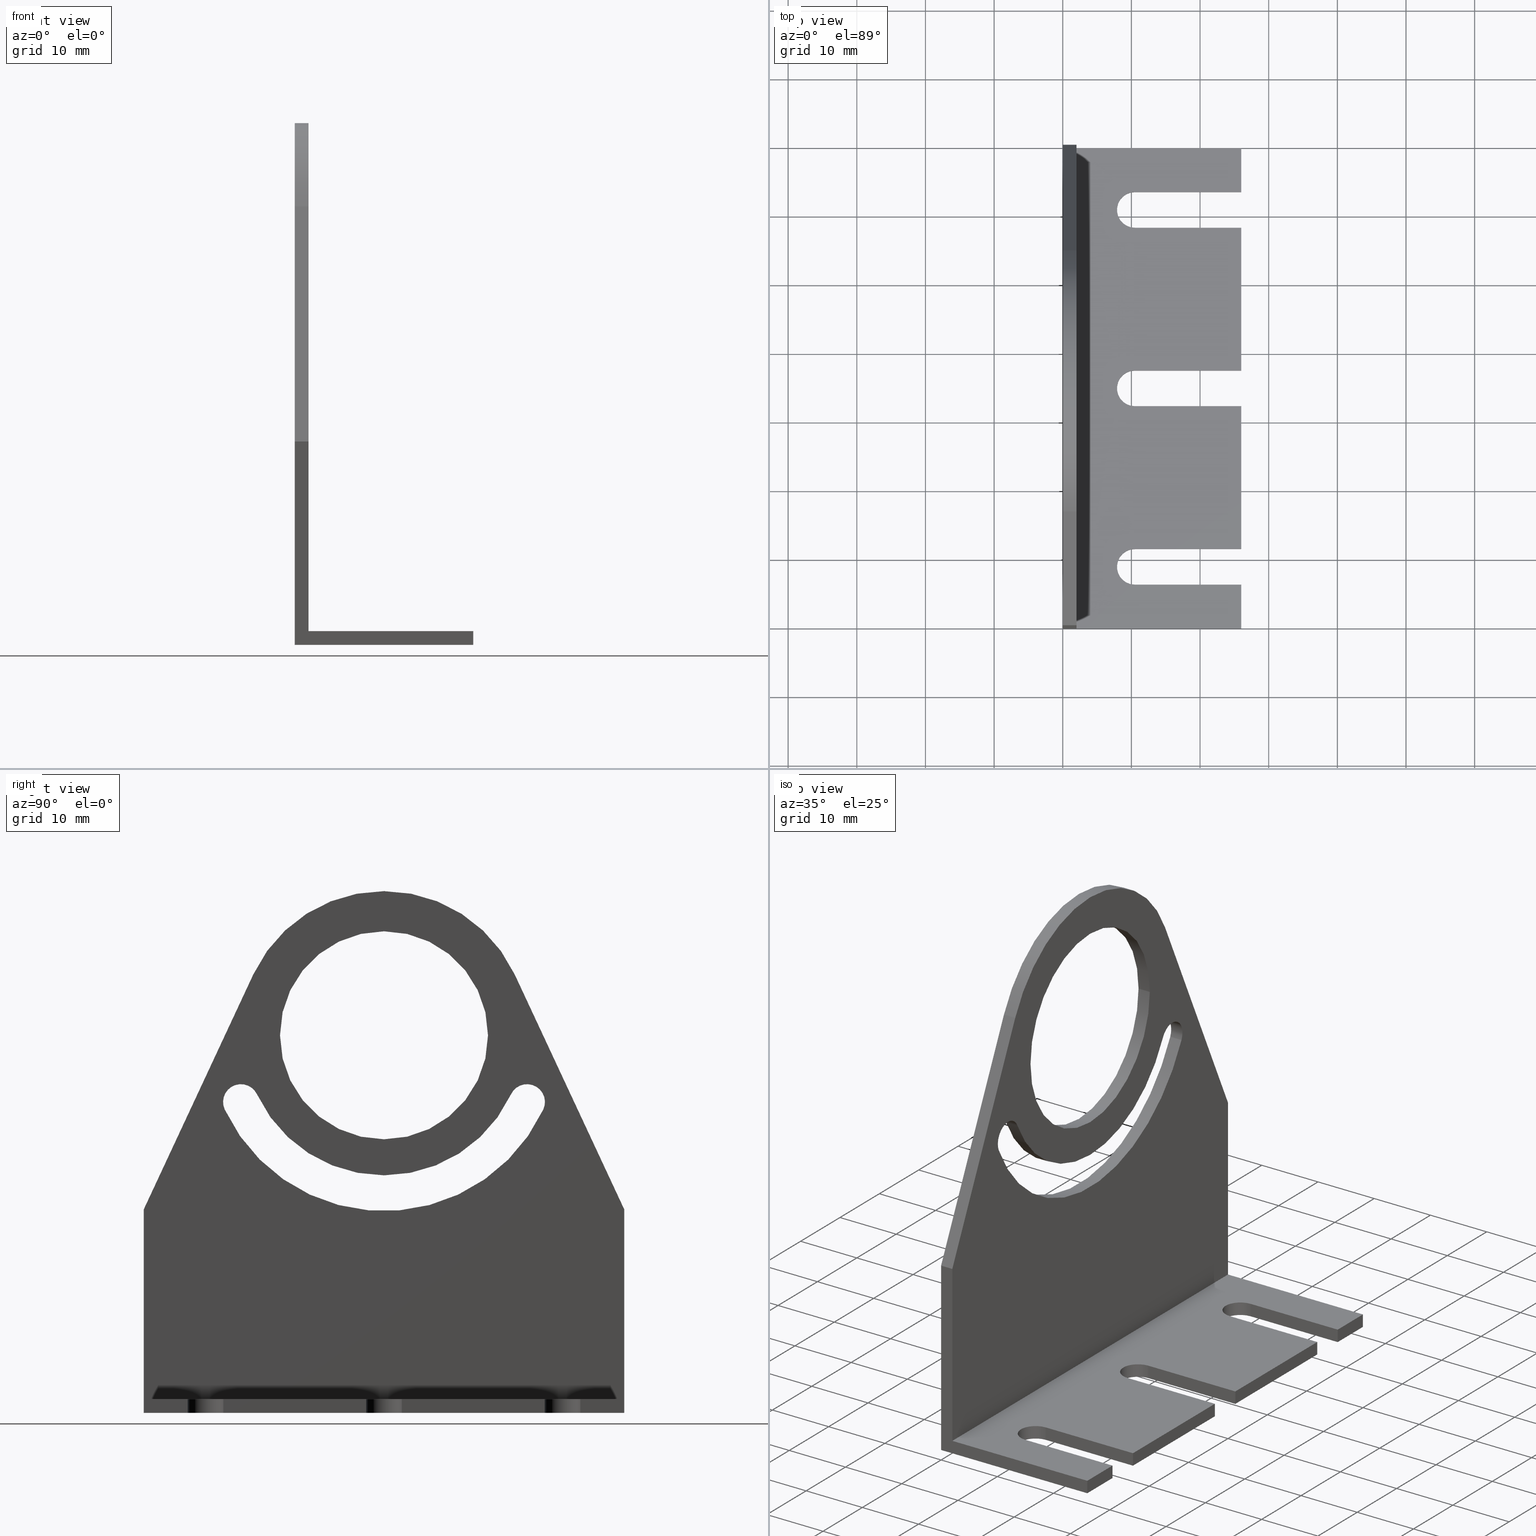
[diagram: canonical four-view strip — front | top / right | iso, engineering-drawing reading convention]
A machine part, canonical four-view strip (front | top / right | iso — engineering-drawing reading convention). The complete STEP part file that produces these views, byte-faithful:
ISO-10303-21;
HEADER;
FILE_DESCRIPTION(('Creo Elements/Direct Modeling STEP Export'),'2;1');
FILE_NAME(
'C:/temp/JobSpoolerServerData/JobServer Files/fb20f614-e6bb-4817-8d61-cb
2bd1c81366/work/output/model.stp','2019-07-30T20:04:17',(''),(''),
'Creo Elements/Direct Modeling STEP processor for AP214 (Solid Model)',
'Creo Elements/Direct Modeling 20.1A  29-Sep-2018 (C) Parametric Technol
ogy GmbH','');
FILE_SCHEMA(('AUTOMOTIVE_DESIGN { 1 0 10303 214 1 1 1 1 }'));
ENDSEC;
DATA;
#10=CARTESIAN_POINT('',(0.,0.,2.));
#20=DIRECTION('',(0.,0.,-1.));
#30=DIRECTION('',(-1.,0.,0.));
#40=AXIS2_PLACEMENT_3D('',#10,#20,#30);
#50=PLANE('',#40);
#60=CARTESIAN_POINT('',(0.,0.,2.));
#70=DIRECTION('',(0.,0.,-1.));
#80=DIRECTION('',(-1.,-1.22839718603489E-16,0.));
#90=AXIS2_PLACEMENT_3D('',#60,#70,#80);
#100=CIRCLE('',#90,15.15);
#110=CARTESIAN_POINT('',(15.15,1.85533990070824E-15,2.));
#120=VERTEX_POINT('',#110);
#130=CARTESIAN_POINT('',(-15.15,0.,2.));
#140=VERTEX_POINT('',#130);
#150=EDGE_CURVE('',#120,#140,#100,.T.);
#160=ORIENTED_EDGE('',*,*,#150,.T.);
#170=EDGE_CURVE('',#140,#120,#100,.T.);
#180=ORIENTED_EDGE('',*,*,#170,.T.);
#190=EDGE_LOOP('',(#180,#160));
#200=FACE_BOUND('',#190,.T.);
#210=CARTESIAN_POINT('',(0.,0.,2.));
#220=DIRECTION('',(0.,0.,1.));
#230=DIRECTION('',(-0.906307787036631,-0.42261826174074,0.));
#240=AXIS2_PLACEMENT_3D('',#210,#220,#230);
#250=CIRCLE('',#240,20.4);
#260=CARTESIAN_POINT('',(-18.4886788555475,-8.6214125395107,2.));
#270=VERTEX_POINT('',#260);
#280=CARTESIAN_POINT('',(18.4886788555478,-8.62141253950999,2.));
#290=VERTEX_POINT('',#280);
#300=EDGE_CURVE('',#270,#290,#250,.T.);
#310=ORIENTED_EDGE('',*,*,#300,.T.);
#320=CARTESIAN_POINT('',(-20.845079101843,-9.72022002003609,2.));
#330=DIRECTION('',(0.,0.,-1.));
#340=DIRECTION('',(-0.906307787036682,-0.422618261740631,0.));
#350=AXIS2_PLACEMENT_3D('',#320,#330,#340);
#360=CIRCLE('',#350,2.6);
#370=CARTESIAN_POINT('',(-23.2014793481383,-10.8190275005618,2.));
#380=VERTEX_POINT('',#370);
#390=EDGE_CURVE('',#380,#270,#360,.T.);
#400=ORIENTED_EDGE('',*,*,#390,.T.);
#410=CARTESIAN_POINT('',(0.,0.,2.));
#420=DIRECTION('',(0.,0.,-1.));
#430=DIRECTION('',(0.906307787036644,-0.422618261740712,0.));
#440=AXIS2_PLACEMENT_3D('',#410,#420,#430);
#450=CIRCLE('',#440,25.6);
#460=CARTESIAN_POINT('',(23.2014793481381,-10.8190275005621,2.));
#470=VERTEX_POINT('',#460);
#480=EDGE_CURVE('',#470,#380,#450,.T.);
#490=ORIENTED_EDGE('',*,*,#480,.T.);
#500=CARTESIAN_POINT('',(20.8450791018429,-9.7202200200361,2.));
#510=DIRECTION('',(0.,0.,-1.));
#520=DIRECTION('',(-0.90630778703655,0.422618261740914,0.));
#530=AXIS2_PLACEMENT_3D('',#500,#510,#520);
#540=CIRCLE('',#530,2.59999999999999);
#550=EDGE_CURVE('',#290,#470,#540,.T.);
#560=ORIENTED_EDGE('',*,*,#550,.T.);
#570=EDGE_LOOP('',(#560,#490,#400,#310));
#580=FACE_BOUND('',#570,.T.);
#590=CARTESIAN_POINT('',(0.,0.,2.));
#600=DIRECTION('',(0.,0.,1.));
#610=DIRECTION('',(0.906307787036637,0.422618261740727,0.));
#620=AXIS2_PLACEMENT_3D('',#590,#600,#610);
#630=CIRCLE('',#620,21.);
#640=CARTESIAN_POINT('',(19.0324635277695,8.87498349655499,2.));
#650=VERTEX_POINT('',#640);
#660=CARTESIAN_POINT('',(-19.0324635277694,8.87498349655527,2.));
#670=VERTEX_POINT('',#660);
#680=EDGE_CURVE('',#650,#670,#630,.T.);
#690=ORIENTED_EDGE('',*,*,#680,.T.);
#700=CARTESIAN_POINT('',(34.5315389351836,-24.3628909761442,2.));
#710=DIRECTION('',(-0.422618261740698,0.90630778703665,0.));
#720=VECTOR('',#710,1.);
#730=LINE('',#700,#720);
#740=CARTESIAN_POINT('',(35.,-25.3675089716322,2.));
#750=VERTEX_POINT('',#740);
#760=EDGE_CURVE('',#750,#650,#730,.T.);
#770=ORIENTED_EDGE('',*,*,#760,.T.);
#780=CARTESIAN_POINT('',(35.,-51.,2.));
#790=DIRECTION('',(0.,1.,0.));
#800=VECTOR('',#790,1.);
#810=LINE('',#780,#800);
#820=CARTESIAN_POINT('',(35.,-53.,2.));
#830=VERTEX_POINT('',#820);
#840=EDGE_CURVE('',#830,#750,#810,.T.);
#850=ORIENTED_EDGE('',*,*,#840,.T.);
#860=CARTESIAN_POINT('',(0.,-53.,2.));
#870=DIRECTION('',(1.,0.,0.));
#880=VECTOR('',#870,1.);
#890=LINE('',#860,#880);
#900=CARTESIAN_POINT('',(-35.,-53.,2.));
#910=VERTEX_POINT('',#900);
#920=EDGE_CURVE('',#910,#830,#890,.T.);
#930=ORIENTED_EDGE('',*,*,#920,.T.);
#940=CARTESIAN_POINT('',(-35.,-26.4759822848468,2.));
#950=DIRECTION('',(0.,-1.,0.));
#960=VECTOR('',#950,1.);
#970=LINE('',#940,#960);
#980=CARTESIAN_POINT('',(-35.,-25.3675089716321,2.));
#990=VERTEX_POINT('',#980);
#1000=EDGE_CURVE('',#990,#910,#970,.T.);
#1010=ORIENTED_EDGE('',*,*,#1000,.T.);
#1020=CARTESIAN_POINT('',(-19.032463527769,8.87498349655582,2.));
#1030=DIRECTION('',(-0.422618261740702,-0.906307787036649,0.));
#1040=VECTOR('',#1030,1.);
#1050=LINE('',#1020,#1040);
#1060=EDGE_CURVE('',#670,#990,#1050,.T.);
#1070=ORIENTED_EDGE('',*,*,#1060,.T.);
#1080=EDGE_LOOP('',(#1070,#1010,#930,#850,#770,#690));
#1090=FACE_OUTER_BOUND('',#1080,.T.);
#1100=ADVANCED_FACE('',(#200,#580,#1090),#50,.F.);
#1110=COLOUR_RGB('',0.69803923368454,0.725490212440491,0.725490212440491
);
#1120=FILL_AREA_STYLE_COLOUR('',#1110);
#1130=FILL_AREA_STYLE('',(#1120));
#1140=SURFACE_STYLE_FILL_AREA(#1130);
#1150=SURFACE_SIDE_STYLE('',(#1140));
#1160=SURFACE_STYLE_USAGE(.BOTH.,#1150);
#1170=PRESENTATION_STYLE_ASSIGNMENT((#1160));
#1180=CARTESIAN_POINT('',(0.,0.,1.));
#1190=DIRECTION('',(0.,0.,-1.));
#1200=DIRECTION('',(-1.,0.,0.));
#1210=AXIS2_PLACEMENT_3D('',#1180,#1190,#1200);
#1220=CYLINDRICAL_SURFACE('',#1210,15.15);
#1230=CARTESIAN_POINT('',(15.15,1.85533990070824E-15,1.));
#1240=DIRECTION('',(0.,0.,-1.));
#1250=VECTOR('',#1240,1.);
#1260=LINE('',#1230,#1250);
#1270=CARTESIAN_POINT('',(15.15,1.85533990070824E-15,0.));
#1280=VERTEX_POINT('',#1270);
#1290=EDGE_CURVE('',#120,#1280,#1260,.T.);
#1300=ORIENTED_EDGE('',*,*,#1290,.T.);
#1310=ORIENTED_EDGE('',*,*,#150,.F.);
#1320=CARTESIAN_POINT('',(-15.15,0.,1.));
#1330=DIRECTION('',(0.,0.,-1.));
#1340=VECTOR('',#1330,1.);
#1350=LINE('',#1320,#1340);
#1360=CARTESIAN_POINT('',(-15.15,0.,0.));
#1370=VERTEX_POINT('',#1360);
#1380=EDGE_CURVE('',#140,#1370,#1350,.T.);
#1390=ORIENTED_EDGE('',*,*,#1380,.F.);
#1400=CARTESIAN_POINT('',(0.,0.,0.));
#1410=DIRECTION('',(0.,0.,1.));
#1420=DIRECTION('',(1.,1.22464679914735E-16,0.));
#1430=AXIS2_PLACEMENT_3D('',#1400,#1410,#1420);
#1440=CIRCLE('',#1430,15.15);
#1450=EDGE_CURVE('',#1370,#1280,#1440,.T.);
#1460=ORIENTED_EDGE('',*,*,#1450,.F.);
#1470=EDGE_LOOP('',(#1460,#1390,#1310,#1300));
#1480=FACE_OUTER_BOUND('',#1470,.T.);
#1490=ADVANCED_FACE('',(#1480),#1220,.F.);
#1500=COLOUR_RGB('',0.69803923368454,0.725490212440491,0.725490212440491
);
#1510=FILL_AREA_STYLE_COLOUR('',#1500);
#1520=FILL_AREA_STYLE('',(#1510));
#1530=SURFACE_STYLE_FILL_AREA(#1520);
#1540=SURFACE_SIDE_STYLE('',(#1530));
#1550=SURFACE_STYLE_USAGE(.BOTH.,#1540);
#1560=PRESENTATION_STYLE_ASSIGNMENT((#1550));
#1570=CARTESIAN_POINT('',(0.,0.,0.));
#1580=DIRECTION('',(0.,0.,-1.));
#1590=DIRECTION('',(-1.,0.,0.));
#1600=AXIS2_PLACEMENT_3D('',#1570,#1580,#1590);
#1610=PLANE('',#1600);
#1620=EDGE_CURVE('',#1280,#1370,#1440,.T.);
#1630=ORIENTED_EDGE('',*,*,#1620,.T.);
#1640=ORIENTED_EDGE('',*,*,#1450,.T.);
#1650=EDGE_LOOP('',(#1640,#1630));
#1660=FACE_BOUND('',#1650,.T.);
#1670=CARTESIAN_POINT('',(-20.845079101843,-9.72022002003609,0.));
#1680=DIRECTION('',(0.,0.,1.));
#1690=DIRECTION('',(0.906307787036802,0.422618261740373,0.));
#1700=AXIS2_PLACEMENT_3D('',#1670,#1680,#1690);
#1710=CIRCLE('',#1700,2.6);
#1720=CARTESIAN_POINT('',(-18.4886788555475,-8.6214125395107,0.));
#1730=VERTEX_POINT('',#1720);
#1740=CARTESIAN_POINT('',(-23.2014793481383,-10.8190275005618,0.));
#1750=VERTEX_POINT('',#1740);
#1760=EDGE_CURVE('',#1730,#1750,#1710,.T.);
#1770=ORIENTED_EDGE('',*,*,#1760,.T.);
#1780=CARTESIAN_POINT('',(0.,0.,0.));
#1790=DIRECTION('',(0.,0.,-1.));
#1800=DIRECTION('',(0.906307787036662,-0.422618261740674,0.));
#1810=AXIS2_PLACEMENT_3D('',#1780,#1790,#1800);
#1820=CIRCLE('',#1810,20.4);
#1830=CARTESIAN_POINT('',(18.4886788555478,-8.62141253950999,0.));
#1840=VERTEX_POINT('',#1830);
#1850=EDGE_CURVE('',#1840,#1730,#1820,.T.);
#1860=ORIENTED_EDGE('',*,*,#1850,.T.);
#1870=CARTESIAN_POINT('',(20.8450791018429,-9.7202200200361,0.));
#1880=DIRECTION('',(0.,0.,1.));
#1890=DIRECTION('',(0.906307787036595,-0.422618261740817,0.));
#1900=AXIS2_PLACEMENT_3D('',#1870,#1880,#1890);
#1910=CIRCLE('',#1900,2.59999999999999);
#1920=CARTESIAN_POINT('',(23.2014793481382,-10.8190275005619,0.));
#1930=VERTEX_POINT('',#1920);
#1940=EDGE_CURVE('',#1930,#1840,#1910,.T.);
#1950=ORIENTED_EDGE('',*,*,#1940,.T.);
#1960=CARTESIAN_POINT('',(0.,0.,0.));
#1970=DIRECTION('',(0.,0.,1.));
#1980=DIRECTION('',(-0.906307787036654,-0.42261826174069,0.));
#1990=AXIS2_PLACEMENT_3D('',#1960,#1970,#1980);
#2000=CIRCLE('',#1990,25.6);
#2010=EDGE_CURVE('',#1750,#1930,#2000,.T.);
#2020=ORIENTED_EDGE('',*,*,#2010,.T.);
#2030=EDGE_LOOP('',(#2020,#1950,#1860,#1770));
#2040=FACE_BOUND('',#2030,.T.);
#2050=CARTESIAN_POINT('',(0.,-55.,0.));
#2060=DIRECTION('',(-1.,0.,0.));
#2070=VECTOR('',#2060,1.);
#2080=LINE('',#2050,#2070);
#2090=CARTESIAN_POINT('',(35.,-55.,0.));
#2100=VERTEX_POINT('',#2090);
#2110=CARTESIAN_POINT('',(-35.,-55.,0.));
#2120=VERTEX_POINT('',#2110);
#2130=EDGE_CURVE('',#2100,#2120,#2080,.T.);
#2140=ORIENTED_EDGE('',*,*,#2130,.T.);
#2150=CARTESIAN_POINT('',(35.,-51.,0.));
#2160=DIRECTION('',(0.,1.,0.));
#2170=VECTOR('',#2160,1.);
#2180=LINE('',#2150,#2170);
#2190=CARTESIAN_POINT('',(35.,-25.3675089716322,0.));
#2200=VERTEX_POINT('',#2190);
#2210=EDGE_CURVE('',#2100,#2200,#2180,.T.);
#2220=ORIENTED_EDGE('',*,*,#2210,.F.);
#2230=CARTESIAN_POINT('',(19.0324635277693,8.87498349655525,0.));
#2240=DIRECTION('',(0.422618261740698,-0.90630778703665,0.));
#2250=VECTOR('',#2240,1.);
#2260=LINE('',#2230,#2250);
#2270=CARTESIAN_POINT('',(19.0324635277695,8.87498349655499,0.));
#2280=VERTEX_POINT('',#2270);
#2290=EDGE_CURVE('',#2280,#2200,#2260,.T.);
#2300=ORIENTED_EDGE('',*,*,#2290,.T.);
#2310=CARTESIAN_POINT('',(0.,0.,0.));
#2320=DIRECTION('',(0.,0.,-1.));
#2330=DIRECTION('',(-0.906307787036624,0.422618261740756,0.));
#2340=AXIS2_PLACEMENT_3D('',#2310,#2320,#2330);
#2350=CIRCLE('',#2340,21.);
#2360=CARTESIAN_POINT('',(-19.0324635277694,8.87498349655527,0.));
#2370=VERTEX_POINT('',#2360);
#2380=EDGE_CURVE('',#2370,#2280,#2350,.T.);
#2390=ORIENTED_EDGE('',*,*,#2380,.T.);
#2400=CARTESIAN_POINT('',(-34.5315389351832,-24.3628909761433,0.));
#2410=DIRECTION('',(0.422618261740702,0.906307787036649,0.));
#2420=VECTOR('',#2410,1.);
#2430=LINE('',#2400,#2420);
#2440=CARTESIAN_POINT('',(-35.,-25.3675089716321,0.));
#2450=VERTEX_POINT('',#2440);
#2460=EDGE_CURVE('',#2450,#2370,#2430,.T.);
#2470=ORIENTED_EDGE('',*,*,#2460,.T.);
#2480=CARTESIAN_POINT('',(-35.,-26.4759822848468,0.));
#2490=DIRECTION('',(0.,-1.,0.));
#2500=VECTOR('',#2490,1.);
#2510=LINE('',#2480,#2500);
#2520=EDGE_CURVE('',#2450,#2120,#2510,.T.);
#2530=ORIENTED_EDGE('',*,*,#2520,.F.);
#2540=EDGE_LOOP('',(#2530,#2470,#2390,#2300,#2220,#2140));
#2550=FACE_OUTER_BOUND('',#2540,.T.);
#2560=ADVANCED_FACE('',(#1660,#2040,#2550),#1610,.T.);
#2570=COLOUR_RGB('',0.69803923368454,0.725490212440491,0.725490212440491
);
#2580=FILL_AREA_STYLE_COLOUR('',#2570);
#2590=FILL_AREA_STYLE('',(#2580));
#2600=SURFACE_STYLE_FILL_AREA(#2590);
#2610=SURFACE_SIDE_STYLE('',(#2600));
#2620=SURFACE_STYLE_USAGE(.BOTH.,#2610);
#2630=PRESENTATION_STYLE_ASSIGNMENT((#2620));
#2640=CARTESIAN_POINT('',(-20.845079101843,-9.72022002003609,2.));
#2650=DIRECTION('',(0.,0.,-1.));
#2660=DIRECTION('',(-1.,0.,0.));
#2670=AXIS2_PLACEMENT_3D('',#2640,#2650,#2660);
#2680=CYLINDRICAL_SURFACE('',#2670,2.6);
#2690=CARTESIAN_POINT('',(-23.2014793481383,-10.8190275005619,0.));
#2700=DIRECTION('',(0.,0.,1.));
#2710=VECTOR('',#2700,1.);
#2720=LINE('',#2690,#2710);
#2730=EDGE_CURVE('',#1750,#380,#2720,.T.);
#2740=ORIENTED_EDGE('',*,*,#2730,.F.);
#2750=ORIENTED_EDGE('',*,*,#390,.F.);
#2760=CARTESIAN_POINT('',(-18.4886788555477,-8.62141253951028,0.));
#2770=DIRECTION('',(0.,0.,1.));
#2780=VECTOR('',#2770,1.);
#2790=LINE('',#2760,#2780);
#2800=EDGE_CURVE('',#1730,#270,#2790,.T.);
#2810=ORIENTED_EDGE('',*,*,#2800,.T.);
#2820=ORIENTED_EDGE('',*,*,#1760,.F.);
#2830=EDGE_LOOP('',(#2820,#2810,#2750,#2740));
#2840=FACE_OUTER_BOUND('',#2830,.T.);
#2850=ADVANCED_FACE('',(#2840),#2680,.F.);
#2860=COLOUR_RGB('',0.69803923368454,0.725490212440491,0.725490212440491
);
#2870=FILL_AREA_STYLE_COLOUR('',#2860);
#2880=FILL_AREA_STYLE('',(#2870));
#2890=SURFACE_STYLE_FILL_AREA(#2880);
#2900=SURFACE_SIDE_STYLE('',(#2890));
#2910=SURFACE_STYLE_USAGE(.BOTH.,#2900);
#2920=PRESENTATION_STYLE_ASSIGNMENT((#2910));
#2930=CARTESIAN_POINT('',(-35.,-51.,2.));
#2940=DIRECTION('',(-1.,0.,0.));
#2950=DIRECTION('',(0.,0.,1.));
#2960=AXIS2_PLACEMENT_3D('',#2930,#2940,#2950);
#2970=PLANE('',#2960);
#2980=ORIENTED_EDGE('',*,*,#2520,.T.);
#2990=CARTESIAN_POINT('',(-35.,-25.3675089716321,0.));
#3000=DIRECTION('',(0.,0.,1.));
#3010=VECTOR('',#3000,1.);
#3020=LINE('',#2990,#3010);
#3030=EDGE_CURVE('',#2450,#990,#3020,.T.);
#3040=ORIENTED_EDGE('',*,*,#3030,.F.);
#3050=ORIENTED_EDGE('',*,*,#1000,.F.);
#3060=CARTESIAN_POINT('',(-35.,-53.,21.));
#3070=DIRECTION('',(0.,0.,-1.));
#3080=VECTOR('',#3070,1.);
#3090=LINE('',#3060,#3080);
#3100=CARTESIAN_POINT('',(-35.,-53.,26.));
#3110=VERTEX_POINT('',#3100);
#3120=EDGE_CURVE('',#3110,#910,#3090,.T.);
#3130=ORIENTED_EDGE('',*,*,#3120,.T.);
#3140=CARTESIAN_POINT('',(-35.,0.,26.));
#3150=DIRECTION('',(0.,-1.,0.));
#3160=VECTOR('',#3150,1.);
#3170=LINE('',#3140,#3160);
#3180=CARTESIAN_POINT('',(-35.,-55.,26.));
#3190=VERTEX_POINT('',#3180);
#3200=EDGE_CURVE('',#3110,#3190,#3170,.T.);
#3210=ORIENTED_EDGE('',*,*,#3200,.F.);
#3220=CARTESIAN_POINT('',(-35.,-55.,21.));
#3230=DIRECTION('',(0.,0.,-1.));
#3240=VECTOR('',#3230,1.);
#3250=LINE('',#3220,#3240);
#3260=EDGE_CURVE('',#3190,#2120,#3250,.T.);
#3270=ORIENTED_EDGE('',*,*,#3260,.F.);
#3280=EDGE_LOOP('',(#3270,#3210,#3130,#3050,#3040,#2980));
#3290=FACE_OUTER_BOUND('',#3280,.T.);
#3300=ADVANCED_FACE('',(#3290),#2970,.T.);
#3310=COLOUR_RGB('',0.69803923368454,0.725490212440491,0.725490212440491
);
#3320=FILL_AREA_STYLE_COLOUR('',#3310);
#3330=FILL_AREA_STYLE('',(#3320));
#3340=SURFACE_STYLE_FILL_AREA(#3330);
#3350=SURFACE_SIDE_STYLE('',(#3340));
#3360=SURFACE_STYLE_USAGE(.BOTH.,#3350);
#3370=PRESENTATION_STYLE_ASSIGNMENT((#3360));
#3380=CARTESIAN_POINT('',(35.,-55.,1.80088514248714));
#3390=DIRECTION('',(0.,1.,0.));
#3400=DIRECTION('',(0.,0.,1.));
#3410=AXIS2_PLACEMENT_3D('',#3380,#3390,#3400);
#3420=PLANE('',#3410);
#3430=ORIENTED_EDGE('',*,*,#2130,.F.);
#3440=ORIENTED_EDGE('',*,*,#3260,.T.);
#3450=CARTESIAN_POINT('',(30.,-55.,26.));
#3460=DIRECTION('',(-1.,0.,0.));
#3470=VECTOR('',#3460,1.);
#3480=LINE('',#3450,#3470);
#3490=CARTESIAN_POINT('',(-28.6,-55.,26.));
#3500=VERTEX_POINT('',#3490);
#3510=EDGE_CURVE('',#3500,#3190,#3480,.T.);
#3520=ORIENTED_EDGE('',*,*,#3510,.T.);
#3530=CARTESIAN_POINT('',(-28.6,-55.,0.));
#3540=DIRECTION('',(0.,0.,-1.));
#3550=VECTOR('',#3540,1.);
#3560=LINE('',#3530,#3550);
#3570=CARTESIAN_POINT('',(-28.6,-55.,10.5));
#3580=VERTEX_POINT('',#3570);
#3590=EDGE_CURVE('',#3500,#3580,#3560,.T.);
#3600=ORIENTED_EDGE('',*,*,#3590,.F.);
#3610=CARTESIAN_POINT('',(-26.,-55.,10.5));
#3620=DIRECTION('',(0.,-1.,0.));
#3630=DIRECTION('',(-1.,0.,2.0496425070003E-14));
#3640=AXIS2_PLACEMENT_3D('',#3610,#3620,#3630);
#3650=CIRCLE('',#3640,2.59999999999999);
#3660=CARTESIAN_POINT('',(-23.4,-55.,10.5));
#3670=VERTEX_POINT('',#3660);
#3680=EDGE_CURVE('',#3580,#3670,#3650,.T.);
#3690=ORIENTED_EDGE('',*,*,#3680,.F.);
#3700=CARTESIAN_POINT('',(-23.4,-55.,0.));
#3710=DIRECTION('',(0.,0.,1.));
#3720=VECTOR('',#3710,1.);
#3730=LINE('',#3700,#3720);
#3740=CARTESIAN_POINT('',(-23.4,-55.,26.));
#3750=VERTEX_POINT('',#3740);
#3760=EDGE_CURVE('',#3670,#3750,#3730,.T.);
#3770=ORIENTED_EDGE('',*,*,#3760,.F.);
#3780=CARTESIAN_POINT('',(-2.60000000000001,-55.,26.));
#3790=VERTEX_POINT('',#3780);
#3800=EDGE_CURVE('',#3790,#3750,#3480,.T.);
#3810=ORIENTED_EDGE('',*,*,#3800,.T.);
#3820=CARTESIAN_POINT('',(-2.60000000000001,-55.,0.));
#3830=DIRECTION('',(0.,0.,-1.));
#3840=VECTOR('',#3830,1.);
#3850=LINE('',#3820,#3840);
#3860=CARTESIAN_POINT('',(-2.60000000000001,-55.,10.5));
#3870=VERTEX_POINT('',#3860);
#3880=EDGE_CURVE('',#3790,#3870,#3850,.T.);
#3890=ORIENTED_EDGE('',*,*,#3880,.F.);
#3900=CARTESIAN_POINT('',(0.,-55.,10.5));
#3910=DIRECTION('',(0.,-1.,0.));
#3920=DIRECTION('',(-1.,0.,2.04964250700029E-14));
#3930=AXIS2_PLACEMENT_3D('',#3900,#3910,#3920);
#3940=CIRCLE('',#3930,2.6);
#3950=CARTESIAN_POINT('',(2.6,-55.,10.5));
#3960=VERTEX_POINT('',#3950);
#3970=EDGE_CURVE('',#3870,#3960,#3940,.T.);
#3980=ORIENTED_EDGE('',*,*,#3970,.F.);
#3990=CARTESIAN_POINT('',(2.6,-55.,0.));
#4000=DIRECTION('',(0.,0.,1.));
#4010=VECTOR('',#4000,1.);
#4020=LINE('',#3990,#4010);
#4030=CARTESIAN_POINT('',(2.60000000000001,-55.,26.));
#4040=VERTEX_POINT('',#4030);
#4050=EDGE_CURVE('',#3960,#4040,#4020,.T.);
#4060=ORIENTED_EDGE('',*,*,#4050,.F.);
#4070=CARTESIAN_POINT('',(23.4,-55.,26.));
#4080=VERTEX_POINT('',#4070);
#4090=EDGE_CURVE('',#4080,#4040,#3480,.T.);
#4100=ORIENTED_EDGE('',*,*,#4090,.T.);
#4110=CARTESIAN_POINT('',(23.4,-55.,0.));
#4120=DIRECTION('',(0.,0.,-1.));
#4130=VECTOR('',#4120,1.);
#4140=LINE('',#4110,#4130);
#4150=CARTESIAN_POINT('',(23.4,-55.,10.5));
#4160=VERTEX_POINT('',#4150);
#4170=EDGE_CURVE('',#4080,#4160,#4140,.T.);
#4180=ORIENTED_EDGE('',*,*,#4170,.F.);
#4190=CARTESIAN_POINT('',(26.,-55.,10.5));
#4200=DIRECTION('',(0.,-1.,0.));
#4210=DIRECTION('',(0.,0.,-1.));
#4220=AXIS2_PLACEMENT_3D('',#4190,#4200,#4210);
#4230=CIRCLE('',#4220,2.59999999999999);
#4240=CARTESIAN_POINT('',(28.6,-55.,10.5));
#4250=VERTEX_POINT('',#4240);
#4260=EDGE_CURVE('',#4160,#4250,#4230,.T.);
#4270=ORIENTED_EDGE('',*,*,#4260,.F.);
#4280=CARTESIAN_POINT('',(28.6,-55.,0.));
#4290=DIRECTION('',(0.,0.,1.));
#4300=VECTOR('',#4290,1.);
#4310=LINE('',#4280,#4300);
#4320=CARTESIAN_POINT('',(28.6,-55.,26.));
#4330=VERTEX_POINT('',#4320);
#4340=EDGE_CURVE('',#4250,#4330,#4310,.T.);
#4350=ORIENTED_EDGE('',*,*,#4340,.F.);
#4360=CARTESIAN_POINT('',(35.,-55.,26.));
#4370=VERTEX_POINT('',#4360);
#4380=EDGE_CURVE('',#4370,#4330,#3480,.T.);
#4390=ORIENTED_EDGE('',*,*,#4380,.T.);
#4400=CARTESIAN_POINT('',(35.,-55.,4.));
#4410=DIRECTION('',(0.,0.,1.));
#4420=VECTOR('',#4410,1.);
#4430=LINE('',#4400,#4420);
#4440=EDGE_CURVE('',#2100,#4370,#4430,.T.);
#4450=ORIENTED_EDGE('',*,*,#4440,.T.);
#4460=EDGE_LOOP('',(#4450,#4390,#4350,#4270,#4180,#4100,#4060,#3980,
#3890,#3810,#3770,#3690,#3600,#3520,#3440,#3430));
#4470=FACE_OUTER_BOUND('',#4460,.T.);
#4480=ADVANCED_FACE('',(#4470),#3420,.F.);
#4490=COLOUR_RGB('',0.69803923368454,0.725490212440491,0.725490212440491
);
#4500=FILL_AREA_STYLE_COLOUR('',#4490);
#4510=FILL_AREA_STYLE('',(#4500));
#4520=SURFACE_STYLE_FILL_AREA(#4510);
#4530=SURFACE_SIDE_STYLE('',(#4520));
#4540=SURFACE_STYLE_USAGE(.BOTH.,#4530);
#4550=PRESENTATION_STYLE_ASSIGNMENT((#4540));
#4560=CARTESIAN_POINT('',(0.,0.,2.));
#4570=DIRECTION('',(0.,0.,-1.));
#4580=DIRECTION('',(-1.,0.,0.));
#4590=AXIS2_PLACEMENT_3D('',#4560,#4570,#4580);
#4600=CYLINDRICAL_SURFACE('',#4590,25.6);
#4610=CARTESIAN_POINT('',(23.2014793481382,-10.8190275005619,0.));
#4620=DIRECTION('',(0.,0.,1.));
#4630=VECTOR('',#4620,1.);
#4640=LINE('',#4610,#4630);
#4650=EDGE_CURVE('',#1930,#470,#4640,.T.);
#4660=ORIENTED_EDGE('',*,*,#4650,.F.);
#4670=ORIENTED_EDGE('',*,*,#480,.F.);
#4680=ORIENTED_EDGE('',*,*,#2730,.T.);
#4690=ORIENTED_EDGE('',*,*,#2010,.F.);
#4700=EDGE_LOOP('',(#4690,#4680,#4670,#4660));
#4710=FACE_OUTER_BOUND('',#4700,.T.);
#4720=ADVANCED_FACE('',(#4710),#4600,.F.);
#4730=COLOUR_RGB('',0.69803923368454,0.725490212440491,0.725490212440491
);
#4740=FILL_AREA_STYLE_COLOUR('',#4730);
#4750=FILL_AREA_STYLE('',(#4740));
#4760=SURFACE_STYLE_FILL_AREA(#4750);
#4770=SURFACE_SIDE_STYLE('',(#4760));
#4780=SURFACE_STYLE_USAGE(.BOTH.,#4770);
#4790=PRESENTATION_STYLE_ASSIGNMENT((#4780));
#4800=CARTESIAN_POINT('',(-35.,-55.,26.));
#4810=DIRECTION('',(-2.47817639425258E-16,0.,1.));
#4820=DIRECTION('',(1.,0.,2.47817639425258E-16));
#4830=AXIS2_PLACEMENT_3D('',#4800,#4810,#4820);
#4840=PLANE('',#4830);
#4850=ORIENTED_EDGE('',*,*,#3200,.T.);
#4860=CARTESIAN_POINT('',(30.,-53.,26.));
#4870=DIRECTION('',(-1.,0.,-2.96059473233375E-16));
#4880=VECTOR('',#4870,1.);
#4890=LINE('',#4860,#4880);
#4900=CARTESIAN_POINT('',(-28.6,-53.,26.));
#4910=VERTEX_POINT('',#4900);
#4920=EDGE_CURVE('',#4910,#3110,#4890,.T.);
#4930=ORIENTED_EDGE('',*,*,#4920,.T.);
#4940=CARTESIAN_POINT('',(-28.6,0.,26.));
#4950=DIRECTION('',(0.,1.,0.));
#4960=VECTOR('',#4950,1.);
#4970=LINE('',#4940,#4960);
#4980=EDGE_CURVE('',#3500,#4910,#4970,.T.);
#4990=ORIENTED_EDGE('',*,*,#4980,.T.);
#5000=ORIENTED_EDGE('',*,*,#3510,.F.);
#5010=EDGE_LOOP('',(#5000,#4990,#4930,#4850));
#5020=FACE_OUTER_BOUND('',#5010,.T.);
#5030=ADVANCED_FACE('',(#5020),#4840,.T.);
#5040=COLOUR_RGB('',0.69803923368454,0.725490212440491,0.725490212440491
);
#5050=FILL_AREA_STYLE_COLOUR('',#5040);
#5060=FILL_AREA_STYLE('',(#5050));
#5070=SURFACE_STYLE_FILL_AREA(#5060);
#5080=SURFACE_SIDE_STYLE('',(#5070));
#5090=SURFACE_STYLE_USAGE(.BOTH.,#5080);
#5100=PRESENTATION_STYLE_ASSIGNMENT((#5090));
#5110=CARTESIAN_POINT('',(19.0324635277696,8.87498349655468,2.));
#5120=DIRECTION('',(0.90630778703665,0.422618261740699,-0.));
#5130=DIRECTION('',(-0.422618261740699,0.90630778703665,0.));
#5140=AXIS2_PLACEMENT_3D('',#5110,#5120,#5130);
#5150=PLANE('',#5140);
#5160=CARTESIAN_POINT('',(19.0324635277696,8.8749834965547,2.));
#5170=DIRECTION('',(0.,0.,-1.));
#5180=VECTOR('',#5170,1.);
#5190=LINE('',#5160,#5180);
#5200=EDGE_CURVE('',#650,#2280,#5190,.T.);
#5210=ORIENTED_EDGE('',*,*,#5200,.F.);
#5220=ORIENTED_EDGE('',*,*,#2290,.F.);
#5230=CARTESIAN_POINT('',(35.,-25.3675089716322,0.));
#5240=DIRECTION('',(0.,0.,1.));
#5250=VECTOR('',#5240,1.);
#5260=LINE('',#5230,#5250);
#5270=EDGE_CURVE('',#2200,#750,#5260,.T.);
#5280=ORIENTED_EDGE('',*,*,#5270,.F.);
#5290=ORIENTED_EDGE('',*,*,#760,.F.);
#5300=EDGE_LOOP('',(#5290,#5280,#5220,#5210));
#5310=FACE_OUTER_BOUND('',#5300,.T.);
#5320=ADVANCED_FACE('',(#5310),#5150,.T.);
#5330=COLOUR_RGB('',0.69803923368454,0.725490212440491,0.725490212440491
);
#5340=FILL_AREA_STYLE_COLOUR('',#5330);
#5350=FILL_AREA_STYLE('',(#5340));
#5360=SURFACE_STYLE_FILL_AREA(#5350);
#5370=SURFACE_SIDE_STYLE('',(#5360));
#5380=SURFACE_STYLE_USAGE(.BOTH.,#5370);
#5390=PRESENTATION_STYLE_ASSIGNMENT((#5380));
#5400=CARTESIAN_POINT('',(35.,-53.,1.80088514248714));
#5410=DIRECTION('',(0.,1.,0.));
#5420=DIRECTION('',(0.,0.,1.));
#5430=AXIS2_PLACEMENT_3D('',#5400,#5410,#5420);
#5440=PLANE('',#5430);
#5450=ORIENTED_EDGE('',*,*,#3120,.F.);
#5460=ORIENTED_EDGE('',*,*,#920,.F.);
#5470=CARTESIAN_POINT('',(35.,-53.,4.));
#5480=DIRECTION('',(0.,0.,1.));
#5490=VECTOR('',#5480,1.);
#5500=LINE('',#5470,#5490);
#5510=CARTESIAN_POINT('',(35.,-53.,26.));
#5520=VERTEX_POINT('',#5510);
#5530=EDGE_CURVE('',#830,#5520,#5500,.T.);
#5540=ORIENTED_EDGE('',*,*,#5530,.F.);
#5550=CARTESIAN_POINT('',(28.6,-53.,26.));
#5560=VERTEX_POINT('',#5550);
#5570=EDGE_CURVE('',#5520,#5560,#4890,.T.);
#5580=ORIENTED_EDGE('',*,*,#5570,.F.);
#5590=CARTESIAN_POINT('',(28.6,-53.,0.));
#5600=DIRECTION('',(0.,0.,1.));
#5610=VECTOR('',#5600,1.);
#5620=LINE('',#5590,#5610);
#5630=CARTESIAN_POINT('',(28.6,-53.,10.5));
#5640=VERTEX_POINT('',#5630);
#5650=EDGE_CURVE('',#5640,#5560,#5620,.T.);
#5660=ORIENTED_EDGE('',*,*,#5650,.T.);
#5670=CARTESIAN_POINT('',(26.,-53.,10.5));
#5680=DIRECTION('',(0.,-1.,0.));
#5690=DIRECTION('',(0.,0.,-1.));
#5700=AXIS2_PLACEMENT_3D('',#5670,#5680,#5690);
#5710=CIRCLE('',#5700,2.59999999999999);
#5720=CARTESIAN_POINT('',(23.4,-53.,10.5));
#5730=VERTEX_POINT('',#5720);
#5740=EDGE_CURVE('',#5730,#5640,#5710,.T.);
#5750=ORIENTED_EDGE('',*,*,#5740,.T.);
#5760=CARTESIAN_POINT('',(23.4,-53.,0.));
#5770=DIRECTION('',(0.,0.,-1.));
#5780=VECTOR('',#5770,1.);
#5790=LINE('',#5760,#5780);
#5800=CARTESIAN_POINT('',(23.4,-53.,26.));
#5810=VERTEX_POINT('',#5800);
#5820=EDGE_CURVE('',#5810,#5730,#5790,.T.);
#5830=ORIENTED_EDGE('',*,*,#5820,.T.);
#5840=CARTESIAN_POINT('',(2.60000000000001,-53.,26.));
#5850=VERTEX_POINT('',#5840);
#5860=EDGE_CURVE('',#5810,#5850,#4890,.T.);
#5870=ORIENTED_EDGE('',*,*,#5860,.F.);
#5880=CARTESIAN_POINT('',(2.6,-53.,0.));
#5890=DIRECTION('',(0.,0.,1.));
#5900=VECTOR('',#5890,1.);
#5910=LINE('',#5880,#5900);
#5920=CARTESIAN_POINT('',(2.6,-53.,10.5));
#5930=VERTEX_POINT('',#5920);
#5940=EDGE_CURVE('',#5930,#5850,#5910,.T.);
#5950=ORIENTED_EDGE('',*,*,#5940,.T.);
#5960=CARTESIAN_POINT('',(0.,-53.,10.5));
#5970=DIRECTION('',(0.,-1.,0.));
#5980=DIRECTION('',(-1.,0.,2.04964250700029E-14));
#5990=AXIS2_PLACEMENT_3D('',#5960,#5970,#5980);
#6000=CIRCLE('',#5990,2.6);
#6010=CARTESIAN_POINT('',(-2.60000000000001,-53.,10.5));
#6020=VERTEX_POINT('',#6010);
#6030=EDGE_CURVE('',#6020,#5930,#6000,.T.);
#6040=ORIENTED_EDGE('',*,*,#6030,.T.);
#6050=CARTESIAN_POINT('',(-2.60000000000001,-53.,0.));
#6060=DIRECTION('',(0.,0.,-1.));
#6070=VECTOR('',#6060,1.);
#6080=LINE('',#6050,#6070);
#6090=CARTESIAN_POINT('',(-2.60000000000001,-53.,26.));
#6100=VERTEX_POINT('',#6090);
#6110=EDGE_CURVE('',#6100,#6020,#6080,.T.);
#6120=ORIENTED_EDGE('',*,*,#6110,.T.);
#6130=CARTESIAN_POINT('',(-23.4,-53.,26.));
#6140=VERTEX_POINT('',#6130);
#6150=EDGE_CURVE('',#6100,#6140,#4890,.T.);
#6160=ORIENTED_EDGE('',*,*,#6150,.F.);
#6170=CARTESIAN_POINT('',(-23.4,-53.,0.));
#6180=DIRECTION('',(0.,0.,1.));
#6190=VECTOR('',#6180,1.);
#6200=LINE('',#6170,#6190);
#6210=CARTESIAN_POINT('',(-23.4,-53.,10.5));
#6220=VERTEX_POINT('',#6210);
#6230=EDGE_CURVE('',#6220,#6140,#6200,.T.);
#6240=ORIENTED_EDGE('',*,*,#6230,.T.);
#6250=CARTESIAN_POINT('',(-26.,-53.,10.5));
#6260=DIRECTION('',(0.,-1.,0.));
#6270=DIRECTION('',(-1.,0.,2.0496425070003E-14));
#6280=AXIS2_PLACEMENT_3D('',#6250,#6260,#6270);
#6290=CIRCLE('',#6280,2.59999999999999);
#6300=CARTESIAN_POINT('',(-28.6,-53.,10.5));
#6310=VERTEX_POINT('',#6300);
#6320=EDGE_CURVE('',#6310,#6220,#6290,.T.);
#6330=ORIENTED_EDGE('',*,*,#6320,.T.);
#6340=CARTESIAN_POINT('',(-28.6,-53.,0.));
#6350=DIRECTION('',(0.,0.,-1.));
#6360=VECTOR('',#6350,1.);
#6370=LINE('',#6340,#6360);
#6380=EDGE_CURVE('',#4910,#6310,#6370,.T.);
#6390=ORIENTED_EDGE('',*,*,#6380,.T.);
#6400=ORIENTED_EDGE('',*,*,#4920,.F.);
#6410=EDGE_LOOP('',(#6400,#6390,#6330,#6240,#6160,#6120,#6040,#5950,
#5870,#5830,#5750,#5660,#5580,#5540,#5460,#5450));
#6420=FACE_OUTER_BOUND('',#6410,.T.);
#6430=ADVANCED_FACE('',(#6420),#5440,.T.);
#6440=COLOUR_RGB('',0.69803923368454,0.725490212440491,0.725490212440491
);
#6450=FILL_AREA_STYLE_COLOUR('',#6440);
#6460=FILL_AREA_STYLE('',(#6450));
#6470=SURFACE_STYLE_FILL_AREA(#6460);
#6480=SURFACE_SIDE_STYLE('',(#6470));
#6490=SURFACE_STYLE_USAGE(.BOTH.,#6480);
#6500=PRESENTATION_STYLE_ASSIGNMENT((#6490));
#6510=CARTESIAN_POINT('',(-35.,-25.3675089716321,2.));
#6520=DIRECTION('',(-0.90630778703665,0.422618261740699,0.));
#6530=DIRECTION('',(-0.422618261740699,-0.90630778703665,0.));
#6540=AXIS2_PLACEMENT_3D('',#6510,#6520,#6530);
#6550=PLANE('',#6540);
#6560=CARTESIAN_POINT('',(-19.0324635277697,8.87498349655467,0.));
#6570=DIRECTION('',(0.,0.,1.));
#6580=VECTOR('',#6570,1.);
#6590=LINE('',#6560,#6580);
#6600=EDGE_CURVE('',#2370,#670,#6590,.T.);
#6610=ORIENTED_EDGE('',*,*,#6600,.F.);
#6620=ORIENTED_EDGE('',*,*,#1060,.F.);
#6630=ORIENTED_EDGE('',*,*,#3030,.T.);
#6640=ORIENTED_EDGE('',*,*,#2460,.F.);
#6650=EDGE_LOOP('',(#6640,#6630,#6620,#6610));
#6660=FACE_OUTER_BOUND('',#6650,.T.);
#6670=ADVANCED_FACE('',(#6660),#6550,.T.);
#6680=COLOUR_RGB('',0.69803923368454,0.725490212440491,0.725490212440491
);
#6690=FILL_AREA_STYLE_COLOUR('',#6680);
#6700=FILL_AREA_STYLE('',(#6690));
#6710=SURFACE_STYLE_FILL_AREA(#6700);
#6720=SURFACE_SIDE_STYLE('',(#6710));
#6730=SURFACE_STYLE_USAGE(.BOTH.,#6720);
#6740=PRESENTATION_STYLE_ASSIGNMENT((#6730));
#6750=CARTESIAN_POINT('',(20.8450791018429,-9.7202200200361,2.));
#6760=DIRECTION('',(0.,0.,-1.));
#6770=DIRECTION('',(-1.,0.,0.));
#6780=AXIS2_PLACEMENT_3D('',#6750,#6760,#6770);
#6790=CYLINDRICAL_SURFACE('',#6780,2.59999999999999);
#6800=CARTESIAN_POINT('',(18.4886788555477,-8.62141253951026,0.));
#6810=DIRECTION('',(0.,0.,1.));
#6820=VECTOR('',#6810,1.);
#6830=LINE('',#6800,#6820);
#6840=EDGE_CURVE('',#1840,#290,#6830,.T.);
#6850=ORIENTED_EDGE('',*,*,#6840,.F.);
#6860=ORIENTED_EDGE('',*,*,#550,.F.);
#6870=ORIENTED_EDGE('',*,*,#4650,.T.);
#6880=ORIENTED_EDGE('',*,*,#1940,.F.);
#6890=EDGE_LOOP('',(#6880,#6870,#6860,#6850));
#6900=FACE_OUTER_BOUND('',#6890,.T.);
#6910=ADVANCED_FACE('',(#6900),#6790,.F.);
#6920=COLOUR_RGB('',0.69803923368454,0.725490212440491,0.725490212440491
);
#6930=FILL_AREA_STYLE_COLOUR('',#6920);
#6940=FILL_AREA_STYLE('',(#6930));
#6950=SURFACE_STYLE_FILL_AREA(#6940);
#6960=SURFACE_SIDE_STYLE('',(#6950));
#6970=SURFACE_STYLE_USAGE(.BOTH.,#6960);
#6980=PRESENTATION_STYLE_ASSIGNMENT((#6970));
#6990=CARTESIAN_POINT('',(35.,-25.3675089716321,2.));
#7000=DIRECTION('',(1.,-0.,0.));
#7010=DIRECTION('',(0.,0.,-1.));
#7020=AXIS2_PLACEMENT_3D('',#6990,#7000,#7010);
#7030=PLANE('',#7020);
#7040=ORIENTED_EDGE('',*,*,#840,.F.);
#7050=ORIENTED_EDGE('',*,*,#5270,.T.);
#7060=ORIENTED_EDGE('',*,*,#2210,.T.);
#7070=ORIENTED_EDGE('',*,*,#4440,.F.);
#7080=CARTESIAN_POINT('',(35.,0.,26.));
#7090=DIRECTION('',(0.,-1.,0.));
#7100=VECTOR('',#7090,1.);
#7110=LINE('',#7080,#7100);
#7120=EDGE_CURVE('',#5520,#4370,#7110,.T.);
#7130=ORIENTED_EDGE('',*,*,#7120,.T.);
#7140=ORIENTED_EDGE('',*,*,#5530,.T.);
#7150=EDGE_LOOP('',(#7140,#7130,#7070,#7060,#7050,#7040));
#7160=FACE_OUTER_BOUND('',#7150,.T.);
#7170=ADVANCED_FACE('',(#7160),#7030,.T.);
#7180=COLOUR_RGB('',0.69803923368454,0.725490212440491,0.725490212440491
);
#7190=FILL_AREA_STYLE_COLOUR('',#7180);
#7200=FILL_AREA_STYLE('',(#7190));
#7210=SURFACE_STYLE_FILL_AREA(#7200);
#7220=SURFACE_SIDE_STYLE('',(#7210));
#7230=SURFACE_STYLE_USAGE(.BOTH.,#7220);
#7240=PRESENTATION_STYLE_ASSIGNMENT((#7230));
#7250=CARTESIAN_POINT('',(0.,0.,2.));
#7260=DIRECTION('',(0.,0.,-1.));
#7270=DIRECTION('',(-1.,0.,0.));
#7280=AXIS2_PLACEMENT_3D('',#7250,#7260,#7270);
#7290=CYLINDRICAL_SURFACE('',#7280,20.4);
#7300=ORIENTED_EDGE('',*,*,#2800,.F.);
#7310=ORIENTED_EDGE('',*,*,#300,.F.);
#7320=ORIENTED_EDGE('',*,*,#6840,.T.);
#7330=ORIENTED_EDGE('',*,*,#1850,.F.);
#7340=EDGE_LOOP('',(#7330,#7320,#7310,#7300));
#7350=FACE_OUTER_BOUND('',#7340,.T.);
#7360=ADVANCED_FACE('',(#7350),#7290,.T.);
#7370=COLOUR_RGB('',0.69803923368454,0.725490212440491,0.725490212440491
);
#7380=FILL_AREA_STYLE_COLOUR('',#7370);
#7390=FILL_AREA_STYLE('',(#7380));
#7400=SURFACE_STYLE_FILL_AREA(#7390);
#7410=SURFACE_SIDE_STYLE('',(#7400));
#7420=SURFACE_STYLE_USAGE(.BOTH.,#7410);
#7430=PRESENTATION_STYLE_ASSIGNMENT((#7420));
#7440=CARTESIAN_POINT('',(0.,0.,2.));
#7450=DIRECTION('',(0.,0.,-1.));
#7460=DIRECTION('',(-1.,0.,0.));
#7470=AXIS2_PLACEMENT_3D('',#7440,#7450,#7460);
#7480=CYLINDRICAL_SURFACE('',#7470,21.);
#7490=ORIENTED_EDGE('',*,*,#5200,.T.);
#7500=ORIENTED_EDGE('',*,*,#680,.F.);
#7510=ORIENTED_EDGE('',*,*,#6600,.T.);
#7520=ORIENTED_EDGE('',*,*,#2380,.F.);
#7530=EDGE_LOOP('',(#7520,#7510,#7500,#7490));
#7540=FACE_OUTER_BOUND('',#7530,.T.);
#7550=ADVANCED_FACE('',(#7540),#7480,.T.);
#7560=COLOUR_RGB('',0.69803923368454,0.725490212440491,0.725490212440491
);
#7570=FILL_AREA_STYLE_COLOUR('',#7560);
#7580=FILL_AREA_STYLE('',(#7570));
#7590=SURFACE_STYLE_FILL_AREA(#7580);
#7600=SURFACE_SIDE_STYLE('',(#7590));
#7610=SURFACE_STYLE_USAGE(.BOTH.,#7600);
#7620=PRESENTATION_STYLE_ASSIGNMENT((#7610));
#7630=ORIENTED_EDGE('',*,*,#4090,.F.);
#7640=CARTESIAN_POINT('',(2.6,0.,26.));
#7650=DIRECTION('',(0.,-1.,0.));
#7660=VECTOR('',#7650,1.);
#7670=LINE('',#7640,#7660);
#7680=EDGE_CURVE('',#5850,#4040,#7670,.T.);
#7690=ORIENTED_EDGE('',*,*,#7680,.T.);
#7700=ORIENTED_EDGE('',*,*,#5860,.T.);
#7710=CARTESIAN_POINT('',(23.4,0.,26.));
#7720=DIRECTION('',(0.,1.,0.));
#7730=VECTOR('',#7720,1.);
#7740=LINE('',#7710,#7730);
#7750=EDGE_CURVE('',#4080,#5810,#7740,.T.);
#7760=ORIENTED_EDGE('',*,*,#7750,.T.);
#7770=EDGE_LOOP('',(#7760,#7700,#7690,#7630));
#7780=FACE_OUTER_BOUND('',#7770,.T.);
#7790=ADVANCED_FACE('',(#7780),#4840,.T.);
#7800=COLOUR_RGB('',0.69803923368454,0.725490212440491,0.725490212440491
);
#7810=FILL_AREA_STYLE_COLOUR('',#7800);
#7820=FILL_AREA_STYLE('',(#7810));
#7830=SURFACE_STYLE_FILL_AREA(#7820);
#7840=SURFACE_SIDE_STYLE('',(#7830));
#7850=SURFACE_STYLE_USAGE(.BOTH.,#7840);
#7860=PRESENTATION_STYLE_ASSIGNMENT((#7850));
#7870=ORIENTED_EDGE('',*,*,#3800,.F.);
#7880=CARTESIAN_POINT('',(-23.4,0.,26.));
#7890=DIRECTION('',(0.,-1.,0.));
#7900=VECTOR('',#7890,1.);
#7910=LINE('',#7880,#7900);
#7920=EDGE_CURVE('',#6140,#3750,#7910,.T.);
#7930=ORIENTED_EDGE('',*,*,#7920,.T.);
#7940=ORIENTED_EDGE('',*,*,#6150,.T.);
#7950=CARTESIAN_POINT('',(-2.60000000000001,0.,26.));
#7960=DIRECTION('',(0.,1.,0.));
#7970=VECTOR('',#7960,1.);
#7980=LINE('',#7950,#7970);
#7990=EDGE_CURVE('',#3790,#6100,#7980,.T.);
#8000=ORIENTED_EDGE('',*,*,#7990,.T.);
#8010=EDGE_LOOP('',(#8000,#7940,#7930,#7870));
#8020=FACE_OUTER_BOUND('',#8010,.T.);
#8030=ADVANCED_FACE('',(#8020),#4840,.T.);
#8040=COLOUR_RGB('',0.69803923368454,0.725490212440491,0.725490212440491
);
#8050=FILL_AREA_STYLE_COLOUR('',#8040);
#8060=FILL_AREA_STYLE('',(#8050));
#8070=SURFACE_STYLE_FILL_AREA(#8060);
#8080=SURFACE_SIDE_STYLE('',(#8070));
#8090=SURFACE_STYLE_USAGE(.BOTH.,#8080);
#8100=PRESENTATION_STYLE_ASSIGNMENT((#8090));
#8110=ORIENTED_EDGE('',*,*,#5570,.T.);
#8120=ORIENTED_EDGE('',*,*,#7120,.F.);
#8130=ORIENTED_EDGE('',*,*,#4380,.F.);
#8140=CARTESIAN_POINT('',(28.6,0.,26.));
#8150=DIRECTION('',(0.,-1.,0.));
#8160=VECTOR('',#8150,1.);
#8170=LINE('',#8140,#8160);
#8180=EDGE_CURVE('',#5560,#4330,#8170,.T.);
#8190=ORIENTED_EDGE('',*,*,#8180,.T.);
#8200=EDGE_LOOP('',(#8190,#8130,#8120,#8110));
#8210=FACE_OUTER_BOUND('',#8200,.T.);
#8220=ADVANCED_FACE('',(#8210),#4840,.T.);
#8230=COLOUR_RGB('',0.69803923368454,0.725490212440491,0.725490212440491
);
#8240=FILL_AREA_STYLE_COLOUR('',#8230);
#8250=FILL_AREA_STYLE('',(#8240));
#8260=SURFACE_STYLE_FILL_AREA(#8250);
#8270=SURFACE_SIDE_STYLE('',(#8260));
#8280=SURFACE_STYLE_USAGE(.BOTH.,#8270);
#8290=PRESENTATION_STYLE_ASSIGNMENT((#8280));
#8300=CARTESIAN_POINT('',(-28.6,-53.,26.));
#8310=DIRECTION('',(1.,0.,-0.));
#8320=DIRECTION('',(0.,0.,1.));
#8330=AXIS2_PLACEMENT_3D('',#8300,#8310,#8320);
#8340=PLANE('',#8330);
#8350=CARTESIAN_POINT('',(-28.6,-53.,10.5));
#8360=DIRECTION('',(0.,-1.,0.));
#8370=VECTOR('',#8360,1.);
#8380=LINE('',#8350,#8370);
#8390=EDGE_CURVE('',#6310,#3580,#8380,.T.);
#8400=ORIENTED_EDGE('',*,*,#8390,.F.);
#8410=ORIENTED_EDGE('',*,*,#3590,.T.);
#8420=ORIENTED_EDGE('',*,*,#4980,.F.);
#8430=ORIENTED_EDGE('',*,*,#6380,.F.);
#8440=EDGE_LOOP('',(#8430,#8420,#8410,#8400));
#8450=FACE_OUTER_BOUND('',#8440,.T.);
#8460=ADVANCED_FACE('',(#8450),#8340,.T.);
#8470=COLOUR_RGB('',0.69803923368454,0.725490212440491,0.725490212440491
);
#8480=FILL_AREA_STYLE_COLOUR('',#8470);
#8490=FILL_AREA_STYLE('',(#8480));
#8500=SURFACE_STYLE_FILL_AREA(#8490);
#8510=SURFACE_SIDE_STYLE('',(#8500));
#8520=SURFACE_STYLE_USAGE(.BOTH.,#8510);
#8530=PRESENTATION_STYLE_ASSIGNMENT((#8520));
#8540=CARTESIAN_POINT('',(-23.4,-53.,10.5));
#8550=DIRECTION('',(-1.,-0.,-0.));
#8560=DIRECTION('',(0.,0.,-1.));
#8570=AXIS2_PLACEMENT_3D('',#8540,#8550,#8560);
#8580=PLANE('',#8570);
#8590=ORIENTED_EDGE('',*,*,#7920,.F.);
#8600=ORIENTED_EDGE('',*,*,#3760,.T.);
#8610=CARTESIAN_POINT('',(-23.4,-53.,10.5));
#8620=DIRECTION('',(0.,-1.,0.));
#8630=VECTOR('',#8620,1.);
#8640=LINE('',#8610,#8630);
#8650=EDGE_CURVE('',#6220,#3670,#8640,.T.);
#8660=ORIENTED_EDGE('',*,*,#8650,.T.);
#8670=ORIENTED_EDGE('',*,*,#6230,.F.);
#8680=EDGE_LOOP('',(#8670,#8660,#8600,#8590));
#8690=FACE_OUTER_BOUND('',#8680,.T.);
#8700=ADVANCED_FACE('',(#8690),#8580,.T.);
#8710=COLOUR_RGB('',0.69803923368454,0.725490212440491,0.725490212440491
);
#8720=FILL_AREA_STYLE_COLOUR('',#8710);
#8730=FILL_AREA_STYLE('',(#8720));
#8740=SURFACE_STYLE_FILL_AREA(#8730);
#8750=SURFACE_SIDE_STYLE('',(#8740));
#8760=SURFACE_STYLE_USAGE(.BOTH.,#8750);
#8770=PRESENTATION_STYLE_ASSIGNMENT((#8760));
#8780=CARTESIAN_POINT('',(-26.,-53.,10.5));
#8790=DIRECTION('',(0.,-1.,0.));
#8800=DIRECTION('',(-1.,0.,2.0496425070003E-14));
#8810=AXIS2_PLACEMENT_3D('',#8780,#8790,#8800);
#8820=CYLINDRICAL_SURFACE('',#8810,2.59999999999999);
#8830=ORIENTED_EDGE('',*,*,#8650,.F.);
#8840=ORIENTED_EDGE('',*,*,#3680,.T.);
#8850=ORIENTED_EDGE('',*,*,#8390,.T.);
#8860=ORIENTED_EDGE('',*,*,#6320,.F.);
#8870=EDGE_LOOP('',(#8860,#8850,#8840,#8830));
#8880=FACE_OUTER_BOUND('',#8870,.T.);
#8890=ADVANCED_FACE('',(#8880),#8820,.F.);
#8900=COLOUR_RGB('',0.69803923368454,0.725490212440491,0.725490212440491
);
#8910=FILL_AREA_STYLE_COLOUR('',#8900);
#8920=FILL_AREA_STYLE('',(#8910));
#8930=SURFACE_STYLE_FILL_AREA(#8920);
#8940=SURFACE_SIDE_STYLE('',(#8930));
#8950=SURFACE_STYLE_USAGE(.BOTH.,#8940);
#8960=PRESENTATION_STYLE_ASSIGNMENT((#8950));
#8970=CARTESIAN_POINT('',(2.6,-53.,10.5));
#8980=DIRECTION('',(-1.,-0.,-0.));
#8990=DIRECTION('',(0.,0.,-1.));
#9000=AXIS2_PLACEMENT_3D('',#8970,#8980,#8990);
#9010=PLANE('',#9000);
#9020=ORIENTED_EDGE('',*,*,#7680,.F.);
#9030=ORIENTED_EDGE('',*,*,#4050,.T.);
#9040=CARTESIAN_POINT('',(2.6,-53.,10.5));
#9050=DIRECTION('',(0.,-1.,0.));
#9060=VECTOR('',#9050,1.);
#9070=LINE('',#9040,#9060);
#9080=EDGE_CURVE('',#5930,#3960,#9070,.T.);
#9090=ORIENTED_EDGE('',*,*,#9080,.T.);
#9100=ORIENTED_EDGE('',*,*,#5940,.F.);
#9110=EDGE_LOOP('',(#9100,#9090,#9030,#9020));
#9120=FACE_OUTER_BOUND('',#9110,.T.);
#9130=ADVANCED_FACE('',(#9120),#9010,.T.);
#9140=COLOUR_RGB('',0.69803923368454,0.725490212440491,0.725490212440491
);
#9150=FILL_AREA_STYLE_COLOUR('',#9140);
#9160=FILL_AREA_STYLE('',(#9150));
#9170=SURFACE_STYLE_FILL_AREA(#9160);
#9180=SURFACE_SIDE_STYLE('',(#9170));
#9190=SURFACE_STYLE_USAGE(.BOTH.,#9180);
#9200=PRESENTATION_STYLE_ASSIGNMENT((#9190));
#9210=CARTESIAN_POINT('',(0.,-53.,10.5));
#9220=DIRECTION('',(0.,-1.,0.));
#9230=DIRECTION('',(-1.,0.,2.04964250700029E-14));
#9240=AXIS2_PLACEMENT_3D('',#9210,#9220,#9230);
#9250=CYLINDRICAL_SURFACE('',#9240,2.6);
#9260=ORIENTED_EDGE('',*,*,#9080,.F.);
#9270=ORIENTED_EDGE('',*,*,#3970,.T.);
#9280=CARTESIAN_POINT('',(-2.60000000000001,-53.,10.5));
#9290=DIRECTION('',(0.,-1.,0.));
#9300=VECTOR('',#9290,1.);
#9310=LINE('',#9280,#9300);
#9320=EDGE_CURVE('',#6020,#3870,#9310,.T.);
#9330=ORIENTED_EDGE('',*,*,#9320,.T.);
#9340=ORIENTED_EDGE('',*,*,#6030,.F.);
#9350=EDGE_LOOP('',(#9340,#9330,#9270,#9260));
#9360=FACE_OUTER_BOUND('',#9350,.T.);
#9370=ADVANCED_FACE('',(#9360),#9250,.F.);
#9380=COLOUR_RGB('',0.69803923368454,0.725490212440491,0.725490212440491
);
#9390=FILL_AREA_STYLE_COLOUR('',#9380);
#9400=FILL_AREA_STYLE('',(#9390));
#9410=SURFACE_STYLE_FILL_AREA(#9400);
#9420=SURFACE_SIDE_STYLE('',(#9410));
#9430=SURFACE_STYLE_USAGE(.BOTH.,#9420);
#9440=PRESENTATION_STYLE_ASSIGNMENT((#9430));
#9450=CARTESIAN_POINT('',(-2.60000000000001,-53.,26.));
#9460=DIRECTION('',(1.,0.,-0.));
#9470=DIRECTION('',(0.,0.,1.));
#9480=AXIS2_PLACEMENT_3D('',#9450,#9460,#9470);
#9490=PLANE('',#9480);
#9500=ORIENTED_EDGE('',*,*,#9320,.F.);
#9510=ORIENTED_EDGE('',*,*,#3880,.T.);
#9520=ORIENTED_EDGE('',*,*,#7990,.F.);
#9530=ORIENTED_EDGE('',*,*,#6110,.F.);
#9540=EDGE_LOOP('',(#9530,#9520,#9510,#9500));
#9550=FACE_OUTER_BOUND('',#9540,.T.);
#9560=ADVANCED_FACE('',(#9550),#9490,.T.);
#9570=COLOUR_RGB('',0.69803923368454,0.725490212440491,0.725490212440491
);
#9580=FILL_AREA_STYLE_COLOUR('',#9570);
#9590=FILL_AREA_STYLE('',(#9580));
#9600=SURFACE_STYLE_FILL_AREA(#9590);
#9610=SURFACE_SIDE_STYLE('',(#9600));
#9620=SURFACE_STYLE_USAGE(.BOTH.,#9610);
#9630=PRESENTATION_STYLE_ASSIGNMENT((#9620));
#9640=CARTESIAN_POINT('',(23.4,-53.,26.));
#9650=DIRECTION('',(1.,0.,-0.));
#9660=DIRECTION('',(0.,0.,1.));
#9670=AXIS2_PLACEMENT_3D('',#9640,#9650,#9660);
#9680=PLANE('',#9670);
#9690=CARTESIAN_POINT('',(23.4,-53.,10.5));
#9700=DIRECTION('',(0.,-1.,0.));
#9710=VECTOR('',#9700,1.);
#9720=LINE('',#9690,#9710);
#9730=EDGE_CURVE('',#5730,#4160,#9720,.T.);
#9740=ORIENTED_EDGE('',*,*,#9730,.F.);
#9750=ORIENTED_EDGE('',*,*,#4170,.T.);
#9760=ORIENTED_EDGE('',*,*,#7750,.F.);
#9770=ORIENTED_EDGE('',*,*,#5820,.F.);
#9780=EDGE_LOOP('',(#9770,#9760,#9750,#9740));
#9790=FACE_OUTER_BOUND('',#9780,.T.);
#9800=ADVANCED_FACE('',(#9790),#9680,.T.);
#9810=COLOUR_RGB('',0.69803923368454,0.725490212440491,0.725490212440491
);
#9820=FILL_AREA_STYLE_COLOUR('',#9810);
#9830=FILL_AREA_STYLE('',(#9820));
#9840=SURFACE_STYLE_FILL_AREA(#9830);
#9850=SURFACE_SIDE_STYLE('',(#9840));
#9860=SURFACE_STYLE_USAGE(.BOTH.,#9850);
#9870=PRESENTATION_STYLE_ASSIGNMENT((#9860));
#9880=CARTESIAN_POINT('',(28.6,-53.,10.5));
#9890=DIRECTION('',(-1.,-0.,-0.));
#9900=DIRECTION('',(0.,0.,-1.));
#9910=AXIS2_PLACEMENT_3D('',#9880,#9890,#9900);
#9920=PLANE('',#9910);
#9930=ORIENTED_EDGE('',*,*,#8180,.F.);
#9940=ORIENTED_EDGE('',*,*,#4340,.T.);
#9950=CARTESIAN_POINT('',(28.6,-53.,10.5));
#9960=DIRECTION('',(0.,-1.,0.));
#9970=VECTOR('',#9960,1.);
#9980=LINE('',#9950,#9970);
#9990=EDGE_CURVE('',#5640,#4250,#9980,.T.);
#10000=ORIENTED_EDGE('',*,*,#9990,.T.);
#10010=ORIENTED_EDGE('',*,*,#5650,.F.);
#10020=EDGE_LOOP('',(#10010,#10000,#9940,#9930));
#10030=FACE_OUTER_BOUND('',#10020,.T.);
#10040=ADVANCED_FACE('',(#10030),#9920,.T.);
#10050=COLOUR_RGB('',0.69803923368454,0.725490212440491,
0.725490212440491);
#10060=FILL_AREA_STYLE_COLOUR('',#10050);
#10070=FILL_AREA_STYLE('',(#10060));
#10080=SURFACE_STYLE_FILL_AREA(#10070);
#10090=SURFACE_SIDE_STYLE('',(#10080));
#10100=SURFACE_STYLE_USAGE(.BOTH.,#10090);
#10110=PRESENTATION_STYLE_ASSIGNMENT((#10100));
#10120=CARTESIAN_POINT('',(26.,-53.,10.5));
#10130=DIRECTION('',(0.,-1.,0.));
#10140=DIRECTION('',(0.,0.,-1.));
#10150=AXIS2_PLACEMENT_3D('',#10120,#10130,#10140);
#10160=CYLINDRICAL_SURFACE('',#10150,2.59999999999999);
#10170=ORIENTED_EDGE('',*,*,#9990,.F.);
#10180=ORIENTED_EDGE('',*,*,#4260,.T.);
#10190=ORIENTED_EDGE('',*,*,#9730,.T.);
#10200=ORIENTED_EDGE('',*,*,#5740,.F.);
#10210=EDGE_LOOP('',(#10200,#10190,#10180,#10170));
#10220=FACE_OUTER_BOUND('',#10210,.T.);
#10230=ADVANCED_FACE('',(#10220),#10160,.F.);
#10240=COLOUR_RGB('',0.69803923368454,0.725490212440491,
0.725490212440491);
#10250=FILL_AREA_STYLE_COLOUR('',#10240);
#10260=FILL_AREA_STYLE('',(#10250));
#10270=SURFACE_STYLE_FILL_AREA(#10260);
#10280=SURFACE_SIDE_STYLE('',(#10270));
#10290=SURFACE_STYLE_USAGE(.BOTH.,#10280);
#10300=PRESENTATION_STYLE_ASSIGNMENT((#10290));
#10310=CARTESIAN_POINT('',(0.,0.,1.));
#10320=DIRECTION('',(0.,0.,-1.));
#10330=DIRECTION('',(-1.,0.,0.));
#10340=AXIS2_PLACEMENT_3D('',#10310,#10320,#10330);
#10350=CYLINDRICAL_SURFACE('',#10340,15.15);
#10360=ORIENTED_EDGE('',*,*,#1290,.F.);
#10370=ORIENTED_EDGE('',*,*,#1620,.F.);
#10380=ORIENTED_EDGE('',*,*,#1380,.T.);
#10390=ORIENTED_EDGE('',*,*,#170,.F.);
#10400=EDGE_LOOP('',(#10390,#10380,#10370,#10360));
#10410=FACE_OUTER_BOUND('',#10400,.T.);
#10420=ADVANCED_FACE('',(#10410),#10350,.F.);
#10430=COLOUR_RGB('',0.69803923368454,0.725490212440491,
0.725490212440491);
#10440=FILL_AREA_STYLE_COLOUR('',#10430);
#10450=FILL_AREA_STYLE('',(#10440));
#10460=SURFACE_STYLE_FILL_AREA(#10450);
#10470=SURFACE_SIDE_STYLE('',(#10460));
#10480=SURFACE_STYLE_USAGE(.BOTH.,#10470);
#10490=PRESENTATION_STYLE_ASSIGNMENT((#10480));
#10500=CLOSED_SHELL('',(#1100,#1490,#2560,#2850,#3300,#4480,#4720,#5030,
#5320,#6430,#6670,#6910,#7170,#7360,#7550,#7790,#8030,#8220,#8460,#8700,
#8890,#9130,#9370,#9560,#9800,#10040,#10230,#10420));
#10510=MANIFOLD_SOLID_BREP('',#10500);
#10520=CARTESIAN_POINT('',(0.,0.,0.));
#10530=DIRECTION('',(0.,0.,1.));
#10540=DIRECTION('',(1.,0.,0.));
#10550=AXIS2_PLACEMENT_3D('',#10520,#10530,#10540);
#10560=APPLICATION_CONTEXT(' ');
#10570=APPLICATION_PROTOCOL_DEFINITION(' ','automotive_design',1998,
#10560);
#10580=PRODUCT_CONTEXT('',#10560,'mechanical');
#10590=PRODUCT_DEFINITION_CONTEXT('part definition',#10560,'design');
#10600=PRODUCT('PLD_M_ME_MB_D70-select','PLD_M_ME_MB_D70-select','',(
#10580));
#10610=PRODUCT_RELATED_PRODUCT_CATEGORY('part',' ',(#10600));
#10620=PRODUCT_DEFINITION_FORMATION_WITH_SPECIFIED_SOURCE('','',#10600,
.BOUGHT.);
#10630=PRODUCT_DEFINITION('',' ',#10620,#10590);
#10640=PRODUCT_DEFINITION_SHAPE('','',#10630);
#10650=DIMENSIONAL_EXPONENTS(1.,0.,0.,0.,0.,0.,0.);
#10660=DIMENSIONAL_EXPONENTS(0.,0.,0.,0.,0.,0.,0.);
#10670=DIMENSIONAL_EXPONENTS(0.,0.,0.,0.,0.,0.,0.);
#10680=(LENGTH_UNIT() NAMED_UNIT(*) SI_UNIT(.MILLI.,.METRE.));
#10690=(NAMED_UNIT(*) PLANE_ANGLE_UNIT() SI_UNIT($,.RADIAN.));
#10700=(NAMED_UNIT(*) SI_UNIT($,.STERADIAN.) SOLID_ANGLE_UNIT());
#10710=(GEOMETRIC_REPRESENTATION_CONTEXT(3) 
GLOBAL_UNCERTAINTY_ASSIGNED_CONTEXT((#10720)) 
GLOBAL_UNIT_ASSIGNED_CONTEXT((#10680,#10690,#10700)) 
REPRESENTATION_CONTEXT('',''));
#10720=UNCERTAINTY_MEASURE_WITH_UNIT(LENGTH_MEASURE(0.011),#10680,
'distance_accuracy_value','maximum gap value');
#10730=ADVANCED_BREP_SHAPE_REPRESENTATION('',(#10550,#10510),#10710);
#10740=SHAPE_DEFINITION_REPRESENTATION(#10640,#10730);
#10750=COLOUR_RGB('',0.69803923368454,0.725490212440491,
0.725490212440491);
#10760=FILL_AREA_STYLE_COLOUR('',#10750);
#10770=FILL_AREA_STYLE('',(#10760));
#10780=SURFACE_STYLE_FILL_AREA(#10770);
#10790=SURFACE_SIDE_STYLE('',(#10780));
#10800=SURFACE_STYLE_USAGE(.BOTH.,#10790);
#10810=PRESENTATION_STYLE_ASSIGNMENT((#10800));
#10820=STYLED_ITEM('',(#10810),#10510);
#10830=OVER_RIDING_STYLED_ITEM('',(#1170),#1100,#10820);
#10840=OVER_RIDING_STYLED_ITEM('',(#1560),#1490,#10820);
#10850=OVER_RIDING_STYLED_ITEM('',(#2630),#2560,#10820);
#10860=OVER_RIDING_STYLED_ITEM('',(#2920),#2850,#10820);
#10870=OVER_RIDING_STYLED_ITEM('',(#3370),#3300,#10820);
#10880=OVER_RIDING_STYLED_ITEM('',(#4550),#4480,#10820);
#10890=OVER_RIDING_STYLED_ITEM('',(#4790),#4720,#10820);
#10900=OVER_RIDING_STYLED_ITEM('',(#5100),#5030,#10820);
#10910=OVER_RIDING_STYLED_ITEM('',(#5390),#5320,#10820);
#10920=OVER_RIDING_STYLED_ITEM('',(#6500),#6430,#10820);
#10930=OVER_RIDING_STYLED_ITEM('',(#6740),#6670,#10820);
#10940=OVER_RIDING_STYLED_ITEM('',(#6980),#6910,#10820);
#10950=OVER_RIDING_STYLED_ITEM('',(#7240),#7170,#10820);
#10960=OVER_RIDING_STYLED_ITEM('',(#7430),#7360,#10820);
#10970=OVER_RIDING_STYLED_ITEM('',(#7620),#7550,#10820);
#10980=OVER_RIDING_STYLED_ITEM('',(#7860),#7790,#10820);
#10990=OVER_RIDING_STYLED_ITEM('',(#8100),#8030,#10820);
#11000=OVER_RIDING_STYLED_ITEM('',(#8290),#8220,#10820);
#11010=OVER_RIDING_STYLED_ITEM('',(#8530),#8460,#10820);
#11020=OVER_RIDING_STYLED_ITEM('',(#8770),#8700,#10820);
#11030=OVER_RIDING_STYLED_ITEM('',(#8960),#8890,#10820);
#11040=OVER_RIDING_STYLED_ITEM('',(#9200),#9130,#10820);
#11050=OVER_RIDING_STYLED_ITEM('',(#9440),#9370,#10820);
#11060=OVER_RIDING_STYLED_ITEM('',(#9630),#9560,#10820);
#11070=OVER_RIDING_STYLED_ITEM('',(#9870),#9800,#10820);
#11080=OVER_RIDING_STYLED_ITEM('',(#10110),#10040,#10820);
#11090=OVER_RIDING_STYLED_ITEM('',(#10300),#10230,#10820);
#11100=OVER_RIDING_STYLED_ITEM('',(#10490),#10420,#10820);
#11110=DRAUGHTING_MODEL('',(#10820,#10830,#10840,#10850,#10860,#10870,
#10880,#10890,#10900,#10910,#10920,#10930,#10940,#10950,#10960,#10970,
#10980,#10990,#11000,#11010,#11020,#11030,#11040,#11050,#11060,#11070,
#11080,#11090,#11100),#10710);
#11120=CARTESIAN_POINT('',(0.,35.,54.9999999999997));
#11130=DIRECTION('',(1.,0.,0.));
#11140=DIRECTION('',(0.,1.,0.));
#11150=AXIS2_PLACEMENT_3D('',#11120,#11130,#11140);
#11160=ITEM_DEFINED_TRANSFORMATION('PLD_M_ME_MB_D70-select','',#10550,
#11150);
#11170=APPLICATION_CONTEXT(' ');
#11180=APPLICATION_PROTOCOL_DEFINITION(' ','automotive_design',1998,
#11170);
#11190=PRODUCT_CONTEXT('',#11170,'mechanical');
#11200=PRODUCT_DEFINITION_CONTEXT('part definition',#11170,'design');
#11210=PRODUCT('PLD_M_ME_MB_D70-select','PLD_M_ME_MB_D70-select','',(
#11190));
#11220=PRODUCT_RELATED_PRODUCT_CATEGORY('part',' ',(#11210));
#11230=PRODUCT_DEFINITION_FORMATION_WITH_SPECIFIED_SOURCE('','',#11210,
.BOUGHT.);
#11240=PRODUCT_DEFINITION('',' ',#11230,#11200);
#11250=PRODUCT_DEFINITION_SHAPE('','',#11240);
#11260=DIMENSIONAL_EXPONENTS(1.,0.,0.,0.,0.,0.,0.);
#11270=DIMENSIONAL_EXPONENTS(0.,0.,0.,0.,0.,0.,0.);
#11280=DIMENSIONAL_EXPONENTS(0.,0.,0.,0.,0.,0.,0.);
#11290=(LENGTH_UNIT() NAMED_UNIT(*) SI_UNIT(.MILLI.,.METRE.));
#11300=(NAMED_UNIT(*) PLANE_ANGLE_UNIT() SI_UNIT($,.RADIAN.));
#11310=(NAMED_UNIT(*) SI_UNIT($,.STERADIAN.) SOLID_ANGLE_UNIT());
#11320=(GEOMETRIC_REPRESENTATION_CONTEXT(3) 
GLOBAL_UNCERTAINTY_ASSIGNED_CONTEXT((#11330)) 
GLOBAL_UNIT_ASSIGNED_CONTEXT((#11290,#11300,#11310)) 
REPRESENTATION_CONTEXT('',''));
#11330=UNCERTAINTY_MEASURE_WITH_UNIT(LENGTH_MEASURE(0.011),#11290,
'distance_accuracy_value','maximum gap value');
#11340=SHAPE_REPRESENTATION('',(#10550,#11150),#11320);
#11350=SHAPE_DEFINITION_REPRESENTATION(#11250,#11340);
#11360=(REPRESENTATION_RELATIONSHIP('','',#10730,#11340) 
REPRESENTATION_RELATIONSHIP_WITH_TRANSFORMATION(#11160) 
SHAPE_REPRESENTATION_RELATIONSHIP());
#11370=NEXT_ASSEMBLY_USAGE_OCCURRENCE('1','','PLD_M_ME_MB_D70-select',
#11240,#10630,'');
#11380=PRODUCT_DEFINITION_SHAPE('','',#11370);
#11390=CONTEXT_DEPENDENT_SHAPE_REPRESENTATION(#11360,#11380);
ENDSEC;
END-ISO-10303-21;
